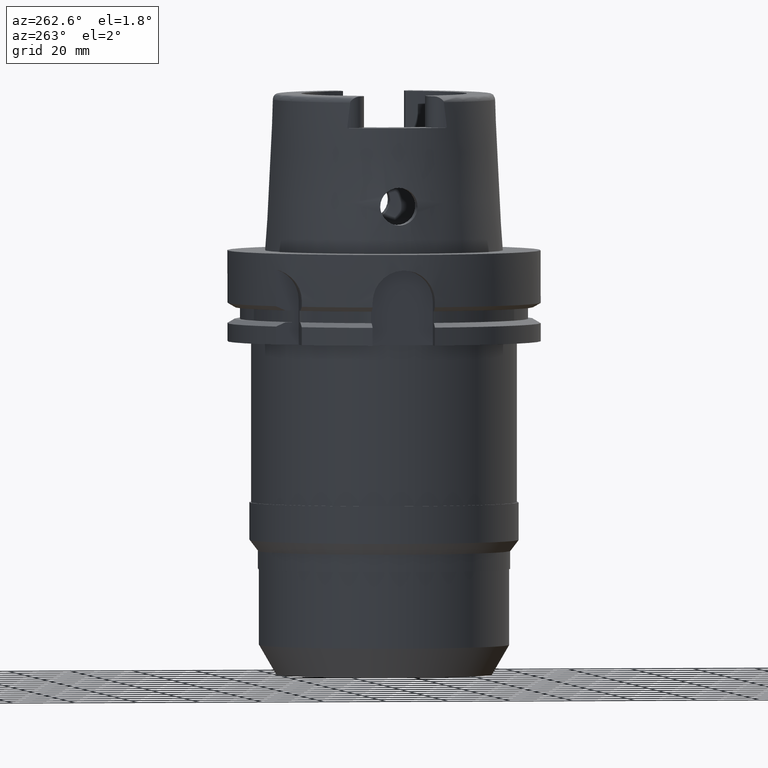
[diagram: clean part render]
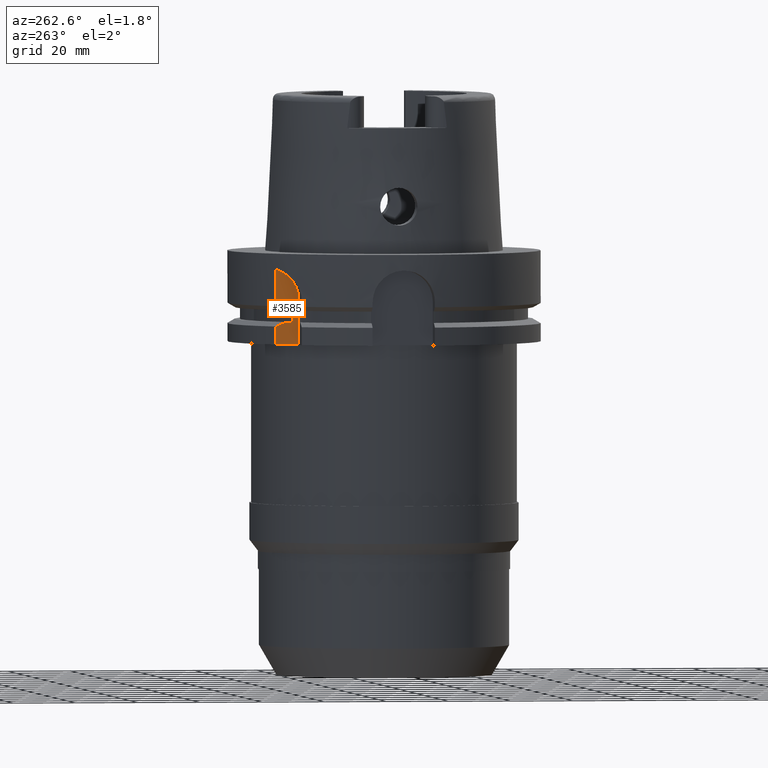
[diagram: same view with one face highlighted and labeled with its STEP entity id]
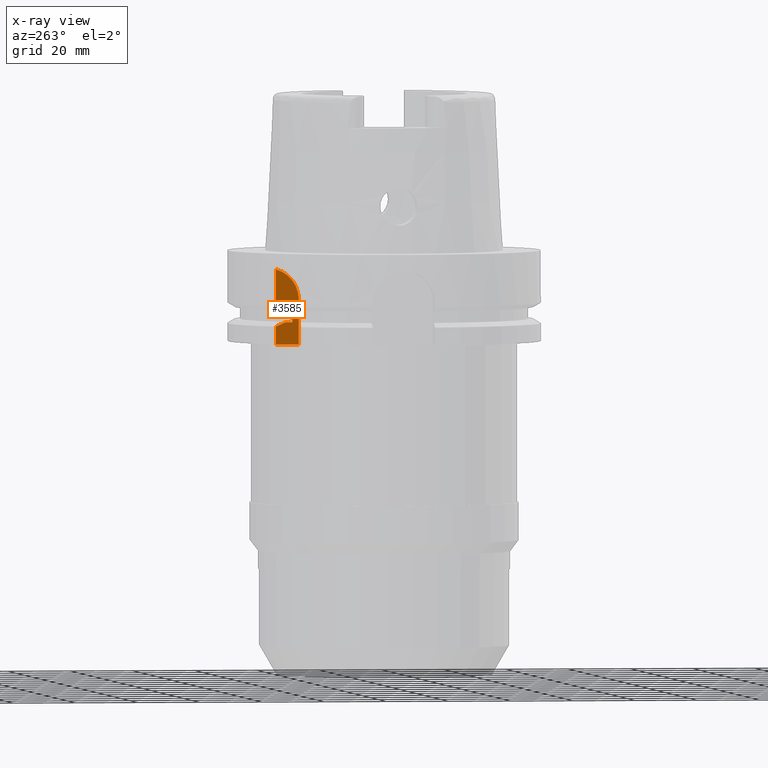
[diagram: x-ray of the same camera — body ghosted, the highlighted face saturated]
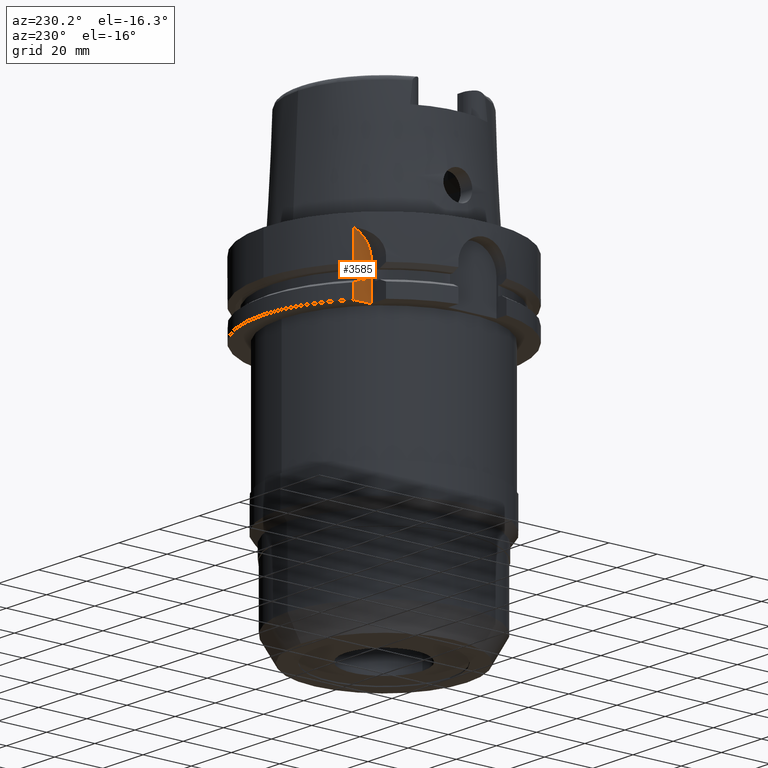
[diagram: same view with one face highlighted and labeled with its STEP entity id]
A machine part, auxiliary view. The second image highlights one B-rep face of the part: STEP entity #3585.
The next image is the same camera in x-ray: the body ghosted, the highlighted face saturated — about 0% of this face is hidden behind the body in this view.
A second angle (auxiliary view) of the same face is appended — the face is thin or edge-on in the first view.
In plain terms, the highlighted planar face has unit normal (1, 0, 0).
Its self-contained STEP definition (entity closure, byte-faithful):
#1318=DIRECTION('',(4.798503851106E-14,1.E0,0.E0));
#1319=VECTOR('',#1318,7.329756630709E0);
#1320=CARTESIAN_POINT('',(-3.15E1,3.15E1,-2.9E1));
#1321=LINE('',#1320,#1319);
#1325=DIRECTION('',(-4.433903906541E-7,9.999999999999E-1,9.391792532212E-14));
#1326=VECTOR('',#1325,2.194015601002E0);
#1327=CARTESIAN_POINT('',(-3.15E1,3.352238058372E1,-1.8125E1));
#1328=LINE('',#1327,#1326);
#1332=CARTESIAN_POINT('',(-3.150000097281E1,3.571639618472E1,-1.8125E1));
#1333=CARTESIAN_POINT('',(-3.150000097281E1,3.606333863821E1,
-1.797477179943E1));
#1334=CARTESIAN_POINT('',(-3.150000002064E1,3.675646915239E1,
-1.767266204693E1));
#1335=CARTESIAN_POINT('',(-3.149999846856E1,3.779429574907E1,
-1.721518165955E1));
#1336=CARTESIAN_POINT('',(-3.150000355959E1,3.848477495946E1,
-1.690706900025E1));
#1337=CARTESIAN_POINT('',(-3.150000355959E1,3.882975374305E1,
-1.675239179145E1));
#1342=CARTESIAN_POINT('',(-3.15E1,4.15E1,-1.463689785921E1));
#1343=DIRECTION('',(1.E0,0.E0,0.E0));
#1344=DIRECTION('',(0.E0,-2.670243369290E-1,9.636897859206E-1));
#1345=AXIS2_PLACEMENT_3D('',#1342,#1343,#1344);
#1350=DIRECTION('',(6.188494047475E-7,5.020316378014E-7,-9.999999999997E-1));
#1351=VECTOR('',#1350,5.752391791881E0);
#1352=CARTESIAN_POINT('',(-3.150000355986E1,3.882975374283E1,
-2.324760820812E1));
#1353=LINE('',#1352,#1351);
#1515=DIRECTION('',(0.E0,0.E0,1.E0));
#1516=VECTOR('',#1515,1.436310214079E1);
#1517=CARTESIAN_POINT('',(-3.15E1,3.15E1,-2.9E1));
#1518=LINE('',#1517,#1516);
#1546=DIRECTION('',(-3.028823767049E-7,-2.457085509676E-7,-9.999999999999E-1));
#1547=VECTOR('',#1546,1.175239179145E1);
#1548=CARTESIAN_POINT('',(-3.15E1,3.882975663071E1,-5.000000000003E0));
#1549=LINE('',#1548,#1547);
#1666=DIRECTION('',(0.E0,0.E0,-1.E0));
#1667=VECTOR('',#1666,3.75E0);
#1668=CARTESIAN_POINT('',(-3.15E1,3.352238058372E1,-1.8125E1));
#1669=LINE('',#1668,#1667);
#1680=DIRECTION('',(-4.434271693799E-7,9.999999999999E-1,-9.229865077722E-14));
#1681=VECTOR('',#1680,2.194015600297E0);
#1682=CARTESIAN_POINT('',(-3.15E1,3.352238058372E1,-2.1875E1));
#1683=LINE('',#1682,#1681);
#1719=CARTESIAN_POINT('',(-3.150000097289E1,3.571639618402E1,-2.1875E1));
#1720=CARTESIAN_POINT('',(-3.150000097289E1,3.605789002737E1,
-2.202286891912E1));
#1721=CARTESIAN_POINT('',(-3.150000002063E1,3.674380017621E1,
-2.232173054124E1));
#1722=CARTESIAN_POINT('',(-3.149999846845E1,3.778158713267E1,
-2.277929841516E1));
#1723=CARTESIAN_POINT('',(-3.150000355986E1,3.847935690318E1,
-2.309050172011E1));
#1724=CARTESIAN_POINT('',(-3.150000355986E1,3.882975374283E1,
-2.324760820812E1));
#2450=CARTESIAN_POINT('',(-3.15E1,3.15E1,-2.9E1));
#2451=CARTESIAN_POINT('',(-3.15E1,3.882975663071E1,-2.9E1));
#2452=VERTEX_POINT('',#2450);
#2453=VERTEX_POINT('',#2451);
#2476=CARTESIAN_POINT('',(-3.150000355986E1,3.882975374283E1,
-2.324760820812E1));
#2477=VERTEX_POINT('',#2476);
#2478=VERTEX_POINT('',#1719);
#2479=CARTESIAN_POINT('',(-3.15E1,3.352238058372E1,-2.1875E1));
#2480=VERTEX_POINT('',#2479);
#2481=CARTESIAN_POINT('',(-3.15E1,3.352238058372E1,-1.8125E1));
#2482=VERTEX_POINT('',#2481);
#2483=CARTESIAN_POINT('',(-3.150000097281E1,3.571639618472E1,-1.8125E1));
#2484=VERTEX_POINT('',#2483);
#2485=VERTEX_POINT('',#1337);
#2486=CARTESIAN_POINT('',(-3.15E1,3.882975663071E1,-5.000000000003E0));
#2487=VERTEX_POINT('',#2486);
#2488=CARTESIAN_POINT('',(-3.15E1,3.15E1,-1.463689785921E1));
#2489=VERTEX_POINT('',#2488);
#3559=CARTESIAN_POINT('',(-3.15E1,0.E0,0.E0));
#3560=DIRECTION('',(1.E0,0.E0,0.E0));
#3561=DIRECTION('',(0.E0,0.E0,1.E0));
#3562=AXIS2_PLACEMENT_3D('',#3559,#3560,#3561);
#3563=PLANE('',#3562);
#3564=ORIENTED_EDGE('',*,*,#3526,.T.);
#3566=ORIENTED_EDGE('',*,*,#3565,.F.);
#3568=ORIENTED_EDGE('',*,*,#3567,.F.);
#3570=ORIENTED_EDGE('',*,*,#3569,.F.);
#3572=ORIENTED_EDGE('',*,*,#3571,.F.);
#3574=ORIENTED_EDGE('',*,*,#3573,.T.);
#3576=ORIENTED_EDGE('',*,*,#3575,.T.);
#3578=ORIENTED_EDGE('',*,*,#3577,.F.);
#3580=ORIENTED_EDGE('',*,*,#3579,.T.);
#3582=ORIENTED_EDGE('',*,*,#3581,.F.);
#3583=EDGE_LOOP('',(#3564,#3566,#3568,#3570,#3572,#3574,#3576,#3578,#3580,
#3582));
#3584=FACE_OUTER_BOUND('',#3583,.F.);
#1338=B_SPLINE_CURVE_WITH_KNOTS('',3,(#1332,#1333,#1334,#1335,#1336,#1337),
.UNSPECIFIED.,.F.,.F.,(4,1,1,4),(0.E0,3.333333333333E-1,6.666666666667E-1,1.E0),
.UNSPECIFIED.);
#1346=CIRCLE('',#1345,1.E1);
#1725=B_SPLINE_CURVE_WITH_KNOTS('',3,(#1719,#1720,#1721,#1722,#1723,#1724),
.UNSPECIFIED.,.F.,.F.,(4,1,1,4),(0.E0,3.333333333333E-1,6.666666666667E-1,1.E0),
.UNSPECIFIED.);
#3526=EDGE_CURVE('',#2452,#2453,#1321,.T.);
#3565=EDGE_CURVE('',#2477,#2453,#1353,.T.);
#3567=EDGE_CURVE('',#2478,#2477,#1725,.T.);
#3569=EDGE_CURVE('',#2480,#2478,#1683,.T.);
#3571=EDGE_CURVE('',#2482,#2480,#1669,.T.);
#3573=EDGE_CURVE('',#2482,#2484,#1328,.T.);
#3575=EDGE_CURVE('',#2484,#2485,#1338,.T.);
#3577=EDGE_CURVE('',#2487,#2485,#1549,.T.);
#3579=EDGE_CURVE('',#2487,#2489,#1346,.T.);
#3581=EDGE_CURVE('',#2452,#2489,#1518,.T.);
#3585=ADVANCED_FACE('',(#3584),#3563,.F.);